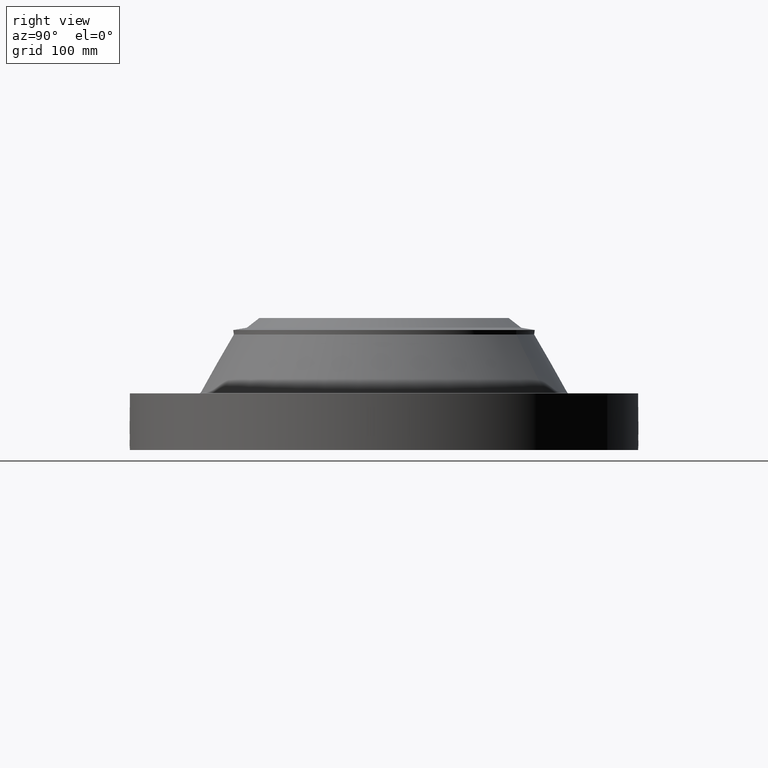
[diagram: clean part render]
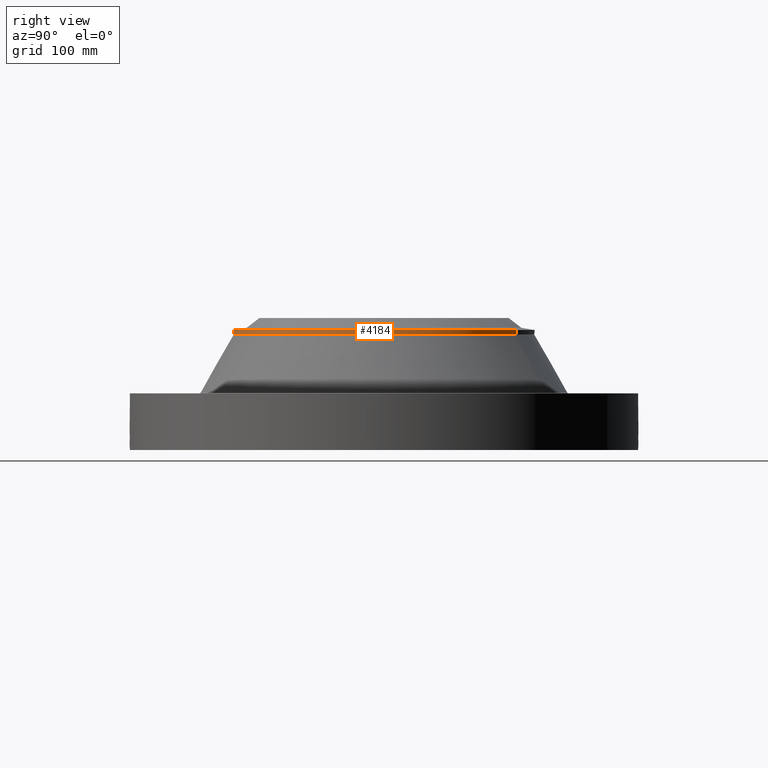
[diagram: same view with one face highlighted and labeled with its STEP entity id]
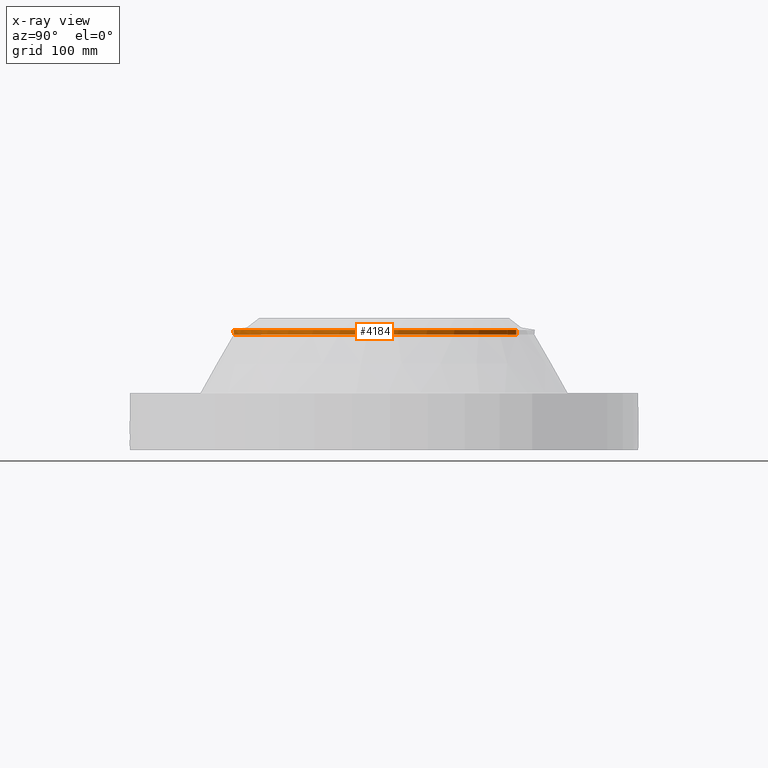
[diagram: x-ray of the same camera — body ghosted, the highlighted face saturated]
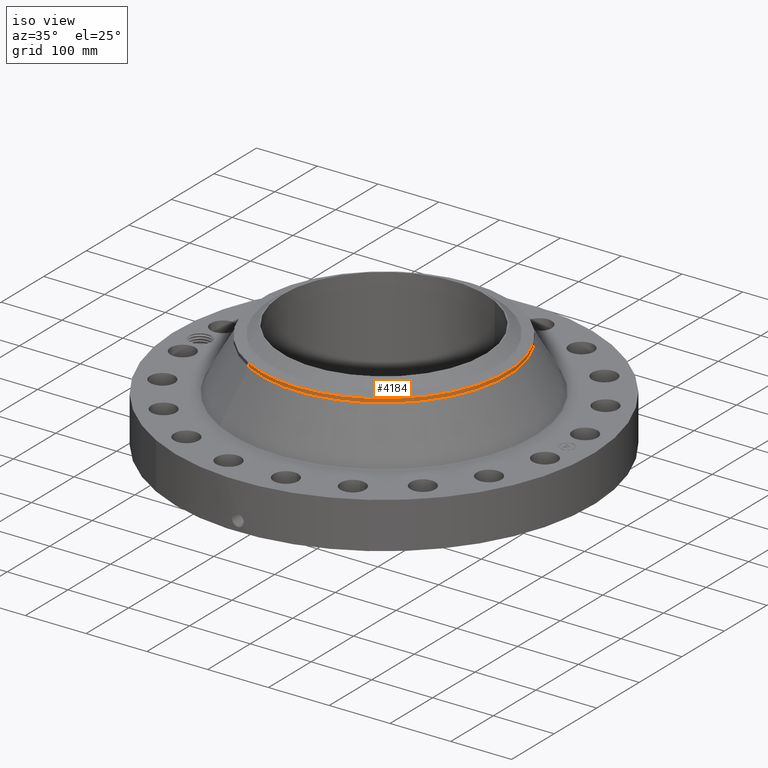
[diagram: same view with one face highlighted and labeled with its STEP entity id]
A machine part, right view. The second image highlights one B-rep face of the part: STEP entity #4184.
The next image is the same camera in x-ray: the body ghosted, the highlighted face saturated — about 0% of this face is hidden behind the body in this view.
A second angle (iso view) of the same face is appended — the face is thin or edge-on in the first view.
In plain terms, the highlighted cylindrical surface (partial cylindrical patch) has radius 203.2 mm, axis along (0, 0, -1).
Its self-contained STEP definition (entity closure, byte-faithful):
#3347=AXIS2_PLACEMENT_3D('Circle Axis2P3D',#3345,#3346,$) ;
#4149=AXIS2_PLACEMENT_3D('Cylinder Axis2P3D',#4146,#4147,#4148) ;
#4167=AXIS2_PLACEMENT_3D('Circle Axis2P3D',#4165,#4166,$) ;
#4174=AXIS2_PLACEMENT_3D('Circle Axis2P3D',#4172,#4173,$) ;
#3342=CARTESIAN_POINT('Vertex',(3.83540430885,7.02066049515,6.37855415759)) ;
#3345=CARTESIAN_POINT('Axis2P3D Location',(0.,0.,6.37855415759)) ;
#3349=CARTESIAN_POINT('Vertex',(-3.83540430885,-7.02066049515,6.37855415759)) ;
#4146=CARTESIAN_POINT('Axis2P3D Location',(0.,0.,3.75000000001)) ;
#4151=CARTESIAN_POINT('Line Origine',(-3.83540430885,-7.02066049515,6.49666439381)) ;
#4155=CARTESIAN_POINT('Vertex',(-3.83540430885,-7.02066049515,6.61477463003)) ;
#4158=CARTESIAN_POINT('Line Origine',(3.83540430885,7.02066049515,6.49666439381)) ;
#4162=CARTESIAN_POINT('Vertex',(3.83540430885,7.02066049515,6.61477463003)) ;
#4165=CARTESIAN_POINT('Axis2P3D Location',(0.,0.,6.61477463003)) ;
#4169=CARTESIAN_POINT('Vertex',(3.83540430885,-7.02066049515,6.61477463003)) ;
#4172=CARTESIAN_POINT('Axis2P3D Location',(0.,0.,6.61477463003)) ;
#3346=DIRECTION('Axis2P3D Direction',(0.,0.,-0.0393700787402)) ;
#4147=DIRECTION('Axis2P3D Direction',(0.,0.,-0.0393700787402)) ;
#4148=DIRECTION('Axis2P3D XDirection',(-0.0188750212049,-0.0345504945626,0.)) ;
#4152=DIRECTION('Vector Direction',(0.,0.,-0.0393700787402)) ;
#4159=DIRECTION('Vector Direction',(0.,0.,-0.0393700787402)) ;
#4166=DIRECTION('Axis2P3D Direction',(0.,0.,-0.0393700787402)) ;
#4173=DIRECTION('Axis2P3D Direction',(0.,0.,-0.0393700787402)) ;
#4153=VECTOR('Line Direction',#4152,0.0393700787402) ;
#4160=VECTOR('Line Direction',#4159,0.0393700787402) ;
#4178=ORIENTED_EDGE('',*,*,#4157,.F.) ;
#4179=ORIENTED_EDGE('',*,*,#3351,.F.) ;
#4180=ORIENTED_EDGE('',*,*,#4164,.T.) ;
#4181=ORIENTED_EDGE('',*,*,#4171,.F.) ;
#4182=ORIENTED_EDGE('',*,*,#4176,.T.) ;
#4184=ADVANCED_FACE('PartBody',(#4183),#4150,.T.) ;
#3348=CIRCLE('generated circle',#3347,8.00000000003) ;
#4168=CIRCLE('generated circle',#4167,8.00000000003) ;
#4175=CIRCLE('generated circle',#4174,8.00000000003) ;
#4150=CYLINDRICAL_SURFACE('generated cylinder',#4149,8.00000000003) ;
#3351=EDGE_CURVE('',#3343,#3350,#3348,.T.) ;
#4157=EDGE_CURVE('',#3350,#4156,#4154,.F.) ;
#4164=EDGE_CURVE('',#3343,#4163,#4161,.F.) ;
#4171=EDGE_CURVE('',#4170,#4163,#4168,.F.) ;
#4176=EDGE_CURVE('',#4170,#4156,#4175,.T.) ;
#4177=EDGE_LOOP('',(#4178,#4179,#4180,#4181,#4182)) ;
#4183=FACE_OUTER_BOUND('',#4177,.T.) ;
#4154=LINE('Line',#4151,#4153) ;
#4161=LINE('Line',#4158,#4160) ;
#3343=VERTEX_POINT('',#3342) ;
#3350=VERTEX_POINT('',#3349) ;
#4156=VERTEX_POINT('',#4155) ;
#4163=VERTEX_POINT('',#4162) ;
#4170=VERTEX_POINT('',#4169) ;